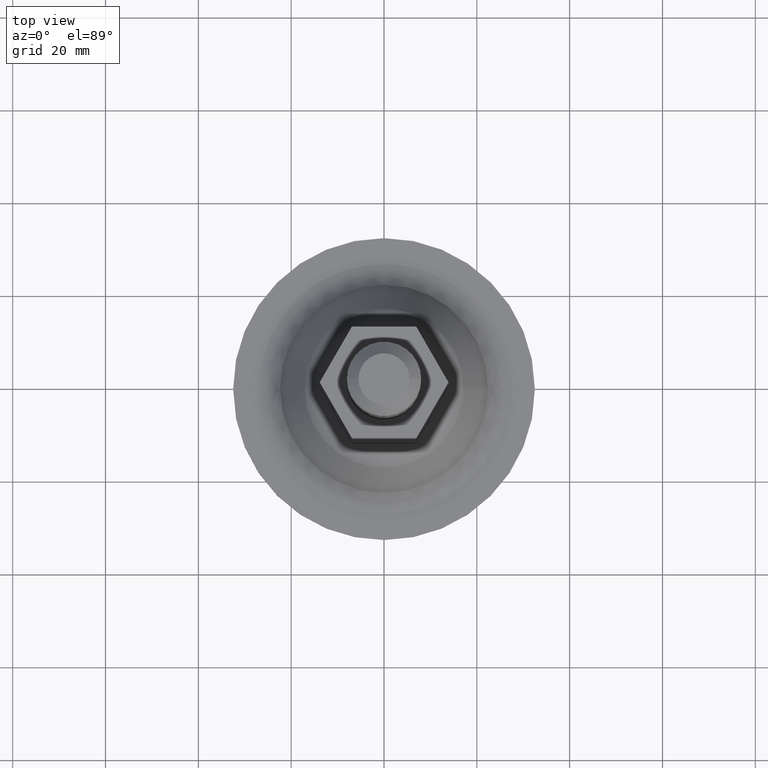
[diagram: clean part render]
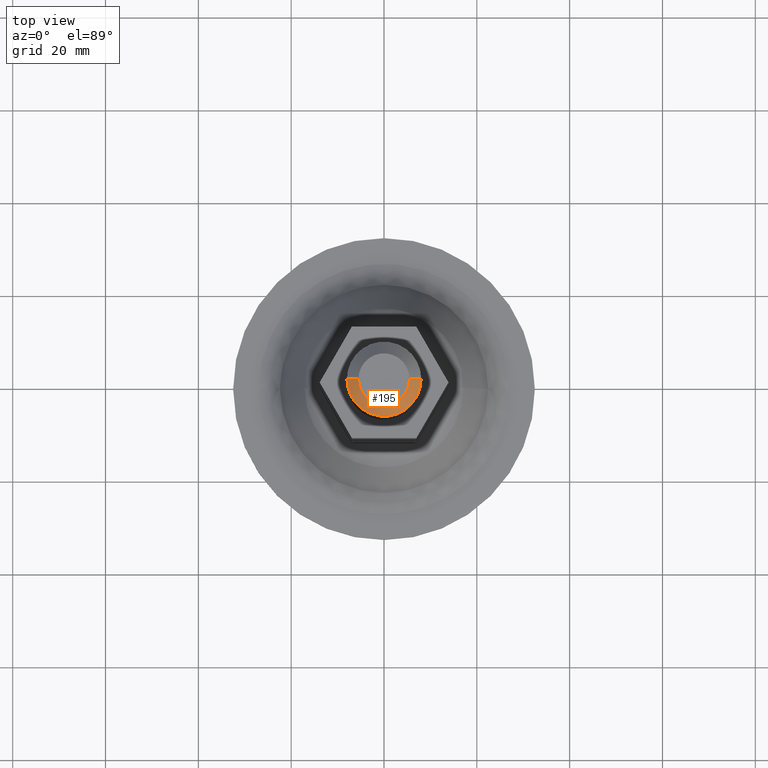
[diagram: same view with one face highlighted and labeled with its STEP entity id]
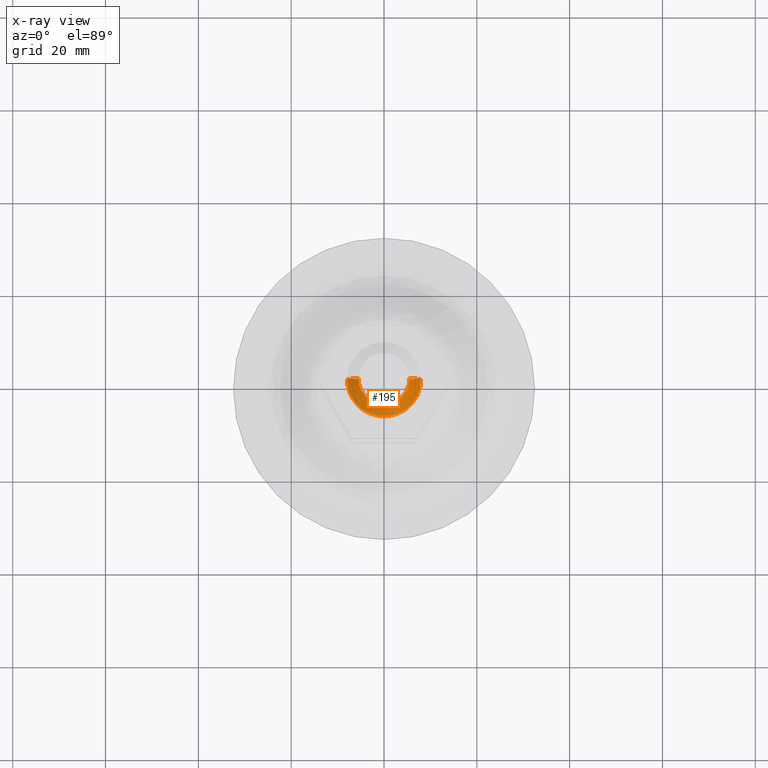
[diagram: x-ray of the same camera — body ghosted, the highlighted face saturated]
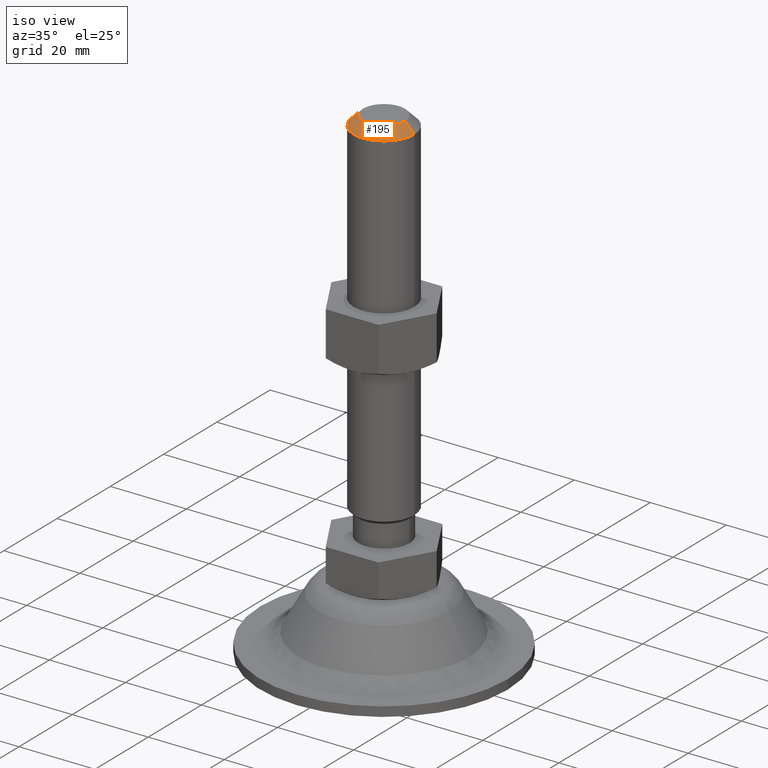
[diagram: same view with one face highlighted and labeled with its STEP entity id]
A machine part, top view. The second image highlights one B-rep face of the part: STEP entity #195.
The next image is the same camera in x-ray: the body ghosted, the highlighted face saturated — about 0% of this face is hidden behind the body in this view.
A second angle (iso view) of the same face is appended — the face is thin or edge-on in the first view.
In plain terms, the highlighted face is a freeform B-spline surface patch.
Its self-contained STEP definition (entity closure, byte-faithful):
#195=ADVANCED_FACE('',(#706),#705,.T.);
#705=( BOUNDED_SURFACE() B_SPLINE_SURFACE( 2,1,((#1411,#1412),(#1413,#1414),(#1415,#1416),(#1417,#1418),(#1419,#1420)), .UNSPECIFIED.,.F.,.F.,.F.) B_SPLINE_SURFACE_WITH_KNOTS((3,2,3),(2,2),(0.00000000000E+00,5.00000000000E-01,1.00000000000E+00),(0.00000000000E+00,1.00000000000E+00), .UNSPECIFIED. ) GEOMETRIC_REPRESENTATION_ITEM() RATIONAL_B_SPLINE_SURFACE(((1.00000000000E+00,1.00000000000E+00),(7.07106781187E-01,7.07106781187E-01),(1.00000000000E+00,1.00000000000E+00),(7.07106781187E-01,7.07106781187E-01),(1.00000000000E+00,1.00000000000E+00))) REPRESENTATION_ITEM('') SURFACE() );
#706=FACE_OUTER_BOUND('',#1421,.T.);
#1411=CARTESIAN_POINT('',(5.50000000016E+00,-1.34711147911E-15,9.99999998658E+01));
#1412=CARTESIAN_POINT('',(8.00000000023E+00,-1.95943487870E-15,9.74999998657E+01));
#1413=CARTESIAN_POINT('',(5.50000000016E+00,-5.50000000019E+00,9.99999998658E+01));
#1414=CARTESIAN_POINT('',(8.00000000023E+00,-8.00000000027E+00,9.74999998657E+01));
#1415=CARTESIAN_POINT('',(-3.19470117334E-11,-5.50000000019E+00,9.99999998658E+01));
#1416=CARTESIAN_POINT('',(-3.19474709759E-11,-8.00000000027E+00,9.74999998657E+01));
#1417=CARTESIAN_POINT('',(-5.50000000023E+00,-5.50000000019E+00,9.99999998658E+01));
#1418=CARTESIAN_POINT('',(-8.00000000030E+00,-8.00000000027E+00,9.74999998657E+01));
#1419=CARTESIAN_POINT('',(-5.50000000023E+00,6.73555739555E-16,9.99999998658E+01));
#1420=CARTESIAN_POINT('',(-8.00000000030E+00,9.79717439350E-16,9.74999998657E+01));
#1421=EDGE_LOOP('',(#2105,#2106,#2107,#2108));
#2105=ORIENTED_EDGE('',*,*,#2417,.F.);
#2106=ORIENTED_EDGE('',*,*,#2418,.F.);
#2107=ORIENTED_EDGE('',*,*,#2332,.T.);
#2108=ORIENTED_EDGE('',*,*,#2419,.T.);
#2332=EDGE_CURVE('',#2772,#2773,#2774,.T.);
#2417=EDGE_CURVE('',#3331,#3332,#3333,.T.);
#2418=EDGE_CURVE('',#2772,#3331,#3339,.T.);
#2419=EDGE_CURVE('',#2773,#3332,#3345,.T.);
#2772=VERTEX_POINT('',#4065);
#2773=VERTEX_POINT('',#4066);
#2774=CIRCLE('',#4070,5.50000000019E+00);
#3331=VERTEX_POINT('',#4471);
#3332=VERTEX_POINT('',#4472);
#3333=CIRCLE('',#4476,8.00000000027E+00);
#3339=(BOUNDED_CURVE() B_SPLINE_CURVE(1,(#4477,#4478),.UNSPECIFIED.,.F.,.F.) B_SPLINE_CURVE_WITH_KNOTS((2,2),(0.00000000000E+00,1.00000000000E+00),.UNSPECIFIED.) CURVE() GEOMETRIC_REPRESENTATION_ITEM() RATIONAL_B_SPLINE_CURVE((1.00000000000E+00,1.00000000000E+00)) REPRESENTATION_ITEM('') );
#3345=(BOUNDED_CURVE() B_SPLINE_CURVE(1,(#4479,#4480),.UNSPECIFIED.,.F.,.F.) B_SPLINE_CURVE_WITH_KNOTS((2,2),(0.00000000000E+00,1.00000000000E+00),.UNSPECIFIED.) CURVE() GEOMETRIC_REPRESENTATION_ITEM() RATIONAL_B_SPLINE_CURVE((7.50000000000E-01,7.50000000000E-01)) REPRESENTATION_ITEM('') );
#4065=CARTESIAN_POINT('',(5.50000000016E+00,2.96059473233E-16,9.99999998658E+01));
#4066=CARTESIAN_POINT('',(-5.50000000023E+00,0.00000000000E+00,9.99999998658E+01));
#4067=CARTESIAN_POINT('',(-3.19460013998E-11,0.00000000000E+00,9.99999998658E+01));
#4068=DIRECTION('',(-0.00000000000E+00,0.00000000000E+00,-1.00000000000E+00));
#4069=DIRECTION('',(-1.00000000000E+00,-1.22460635382E-16,0.00000000000E+00));
#4070=AXIS2_PLACEMENT_3D('',#4067,#4068,#4069);
#4471=CARTESIAN_POINT('',(8.00000000023E+00,8.88178419700E-16,9.74999998657E+01));
#4472=CARTESIAN_POINT('',(-8.00000000030E+00,0.00000000000E+00,9.74999998657E+01));
#4473=CARTESIAN_POINT('',(-3.19460013998E-11,0.00000000000E+00,9.74999998657E+01));
#4474=DIRECTION('',(-0.00000000000E+00,0.00000000000E+00,-1.00000000000E+00));
#4475=DIRECTION('',(-1.00000000000E+00,-1.22460635382E-16,0.00000000000E+00));
#4476=AXIS2_PLACEMENT_3D('',#4473,#4474,#4475);
#4477=CARTESIAN_POINT('',(5.50000000016E+00,-1.34706698925E-15,9.99999998658E+01));
#4478=CARTESIAN_POINT('',(8.00000000023E+00,-1.95937016618E-15,9.74999998657E+01));
#4479=CARTESIAN_POINT('',(-5.50000000023E+00,1.77635683940E-15,9.99999998658E+01));
#4480=CARTESIAN_POINT('',(-8.00000000030E+00,2.07241631263E-15,9.74999998657E+01));